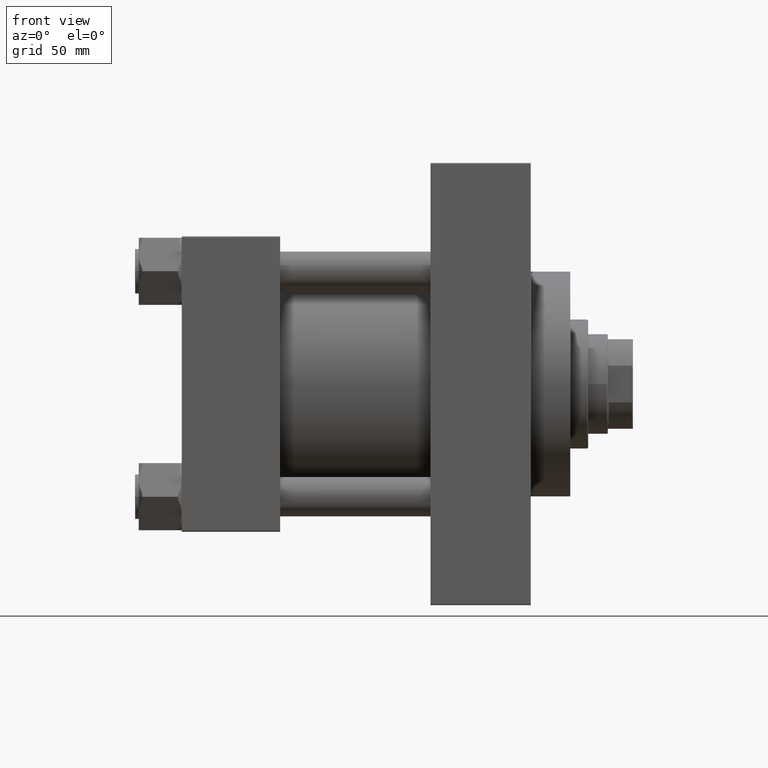
[diagram: clean part render]
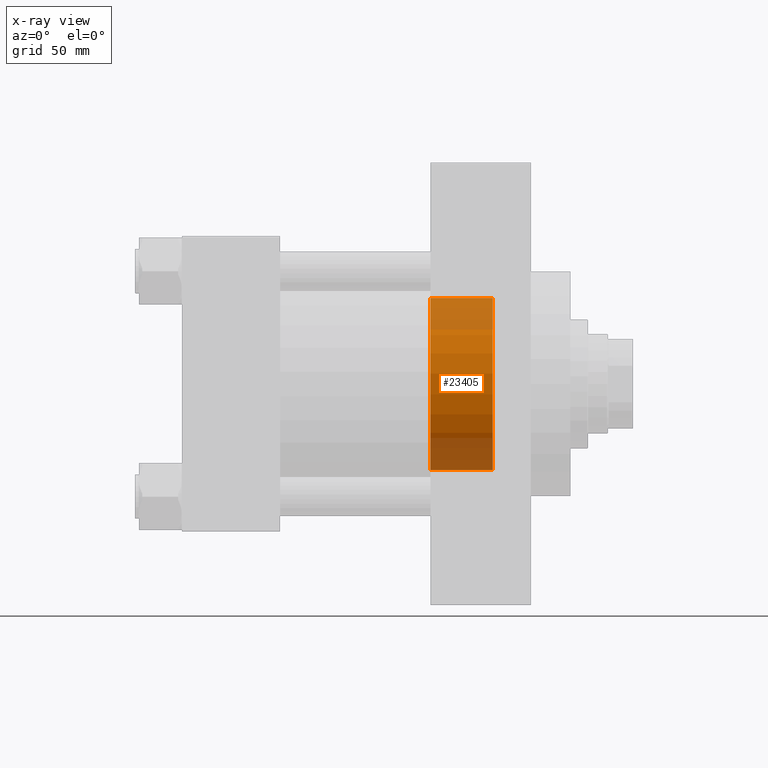
[diagram: x-ray — body ghosted, one internal face saturated and labeled with its STEP entity id]
A machine part, front view, then the same camera in x-ray: the body is ghosted and one INTERNAL B-rep face — a face not visible from any outside direction — is saturated and labeled: STEP entity #23405.
In plain terms, the highlighted cylindrical surface (partial cylindrical patch) has radius 48 mm, axis along (1, 0, 0).
Its self-contained STEP definition (entity closure, byte-faithful):
#1624 = EDGE_CURVE ( 'NONE', #46751, #22948, #7985, .T. ) ;
#4765 = CARTESIAN_POINT ( 'NONE',  ( 139.0000000000000000, 0.000000000000000000, -48.00000000000000711 ) ) ;
#5853 = AXIS2_PLACEMENT_3D ( 'NONE', #15184, #18321, #43871 ) ;
#6844 = ORIENTED_EDGE ( 'NONE', *, *, #1624, .T. ) ;
#7115 = VERTEX_POINT ( 'NONE', #30579 ) ;
#7985 = LINE ( 'NONE', #41736, #20882 ) ;
#9803 = EDGE_CURVE ( 'NONE', #29502, #46751, #10343, .T. ) ;
#10343 = CIRCLE ( 'NONE', #24873, 48.00000000000000711 ) ;
#15184 = CARTESIAN_POINT ( 'NONE',  ( -80.76450198781715528, 0.000000000000000000, 0.000000000000000000 ) ) ;
#15530 = AXIS2_PLACEMENT_3D ( 'NONE', #20157, #35359, #27869 ) ;
#16125 = EDGE_CURVE ( 'NONE', #29502, #7115, #16766, .T. ) ;
#16766 = LINE ( 'NONE', #31467, #36428 ) ;
#18321 = DIRECTION ( 'NONE',  ( 1.000000000000000000, -0.000000000000000000, -0.000000000000000000 ) ) ;
#18783 = EDGE_LOOP ( 'NONE', ( #21537, #6844, #45322, #38453 ) ) ;
#18870 = DIRECTION ( 'NONE',  ( 0.000000000000000000, 0.000000000000000000, 1.000000000000000000 ) ) ;
#20157 = CARTESIAN_POINT ( 'NONE',  ( 173.7400000000000091, 0.000000000000000000, 0.000000000000000000 ) ) ;
#20882 = VECTOR ( 'NONE', #26562, 1000.000000000000000 ) ;
#21537 = ORIENTED_EDGE ( 'NONE', *, *, #9803, .T. ) ;
#22948 = VERTEX_POINT ( 'NONE', #39329 ) ;
#23405 = ADVANCED_FACE ( 'NONE', ( #38575 ), #36656, .F. ) ;
#23972 = CIRCLE ( 'NONE', #15530, 48.00000000000000711 ) ;
#24873 = AXIS2_PLACEMENT_3D ( 'NONE', #25367, #33095, #18870 ) ;
#25367 = CARTESIAN_POINT ( 'NONE',  ( 139.0000000000000000, 0.000000000000000000, 0.000000000000000000 ) ) ;
#26562 = DIRECTION ( 'NONE',  ( 1.000000000000000000, -0.000000000000000000, -0.000000000000000000 ) ) ;
#27848 = DIRECTION ( 'NONE',  ( 1.000000000000000000, -0.000000000000000000, -0.000000000000000000 ) ) ;
#27869 = DIRECTION ( 'NONE',  ( 0.000000000000000000, 0.000000000000000000, -1.000000000000000000 ) ) ;
#29502 = VERTEX_POINT ( 'NONE', #4765 ) ;
#30579 = CARTESIAN_POINT ( 'NONE',  ( 173.7400000000000091, 0.000000000000000000, -48.00000000000000711 ) ) ;
#31467 = CARTESIAN_POINT ( 'NONE',  ( -80.76450198781715528, 0.000000000000000000, -48.00000000000000711 ) ) ;
#33095 = DIRECTION ( 'NONE',  ( -1.000000000000000000, 0.000000000000000000, -0.000000000000000000 ) ) ;
#35271 = CARTESIAN_POINT ( 'NONE',  ( 139.0000000000000000, 5.878304635907296578E-15, 48.00000000000000711 ) ) ;
#35359 = DIRECTION ( 'NONE',  ( 1.000000000000000000, 0.000000000000000000, 0.000000000000000000 ) ) ;
#36428 = VECTOR ( 'NONE', #27848, 1000.000000000000000 ) ;
#36656 = CYLINDRICAL_SURFACE ( 'NONE', #5853, 48.00000000000000711 ) ;
#38453 = ORIENTED_EDGE ( 'NONE', *, *, #16125, .F. ) ;
#38575 = FACE_OUTER_BOUND ( 'NONE', #18783, .T. ) ;
#39329 = CARTESIAN_POINT ( 'NONE',  ( 173.7400000000000091, 5.878304635907296578E-15, 48.00000000000000711 ) ) ;
#39835 = EDGE_CURVE ( 'NONE', #22948, #7115, #23972, .T. ) ;
#41736 = CARTESIAN_POINT ( 'NONE',  ( -80.76450198781715528, 5.878304635907296578E-15, 48.00000000000000711 ) ) ;
#43871 = DIRECTION ( 'NONE',  ( 0.000000000000000000, 0.000000000000000000, -1.000000000000000000 ) ) ;
#45322 = ORIENTED_EDGE ( 'NONE', *, *, #39835, .T. ) ;
#46751 = VERTEX_POINT ( 'NONE', #35271 ) ;